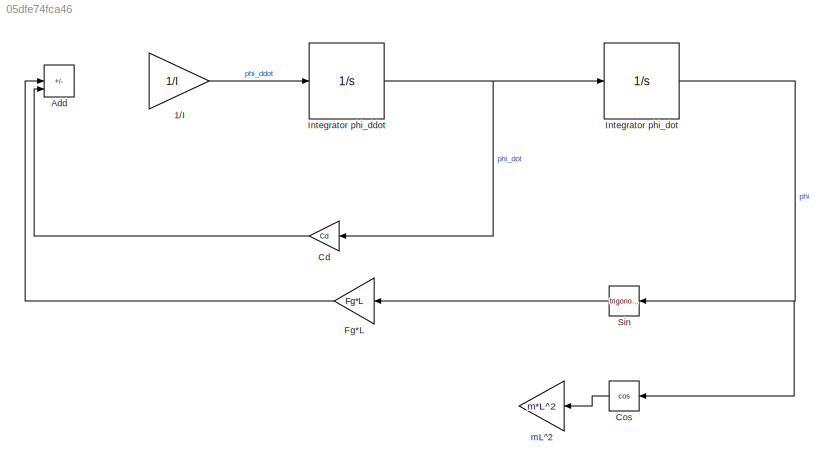
MODEL slx_05dfe74fca46
KIND model
CONFIG AbsTol = auto
CONFIG EnableMultiTasking = off
CONFIG FixedStep = auto
CONFIG MaxStep = auto
CONFIG MinStep = auto
CONFIG RelTol = 1e-3
CONFIG SampleTimeConstraint = Unconstrained
CONFIG SolverName = VariableStepAuto
CONFIG StartTime = 0.0
CONFIG StopTime = 10.0
WORKSPACE source: mxarray member
WORKSPACE Cd = 3
WORKSPACE Fg = 39.24
WORKSPACE I = 4
WORKSPACE L = 1
WORKSPACE g = 9.81
WORKSPACE m = 4
BLOCK [Gain] 1//I
  Gain = 1/I
BLOCK [Sum] Add
  IconShape = rectangular
  Inputs = +--
BLOCK [Gain] Cd
  Gain = Cd
  NameLocation = top
BLOCK [Trigonometry] Cos
  NameLocation = top
  Operator = cos
BLOCK [Gain] Fg*L
  Gain = Fg*L
  NameLocation = top
BLOCK [Integrator] Integrator phi_ddot
BLOCK [Integrator] Integrator phi_dot
BLOCK [Trigonometry] Sin
  NameLocation = top
BLOCK [Gain] mL^2
  Gain = m*L^2
  NameLocation = top
LINE 1//I:1 -> Integrator phi_ddot:1
LINE Cd:1 -> Add:3
LINE Cos:1 -> mL^2:1
LINE Fg*L:1 -> Add:2
NET Integrator phi_ddot:1 -> Cd:1, Integrator phi_dot:1
NET Integrator phi_dot:1 -> Cos:1, Sin:1
LINE Sin:1 -> Fg*L:1
note: NET lines group one-source signal fan-out (src -> all destinations, sorted); 1:1 wires keep LINE
